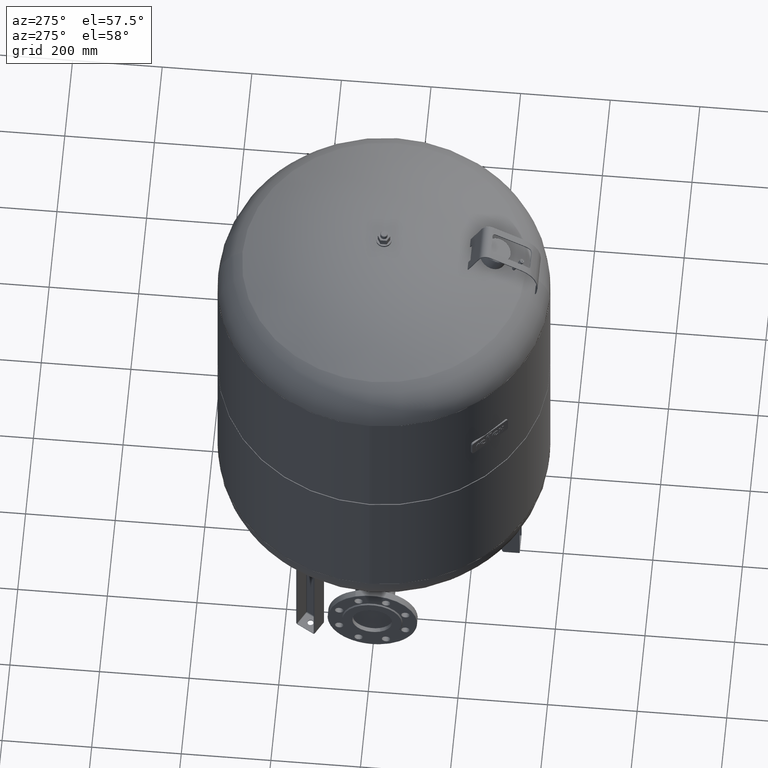
[diagram: clean part render]
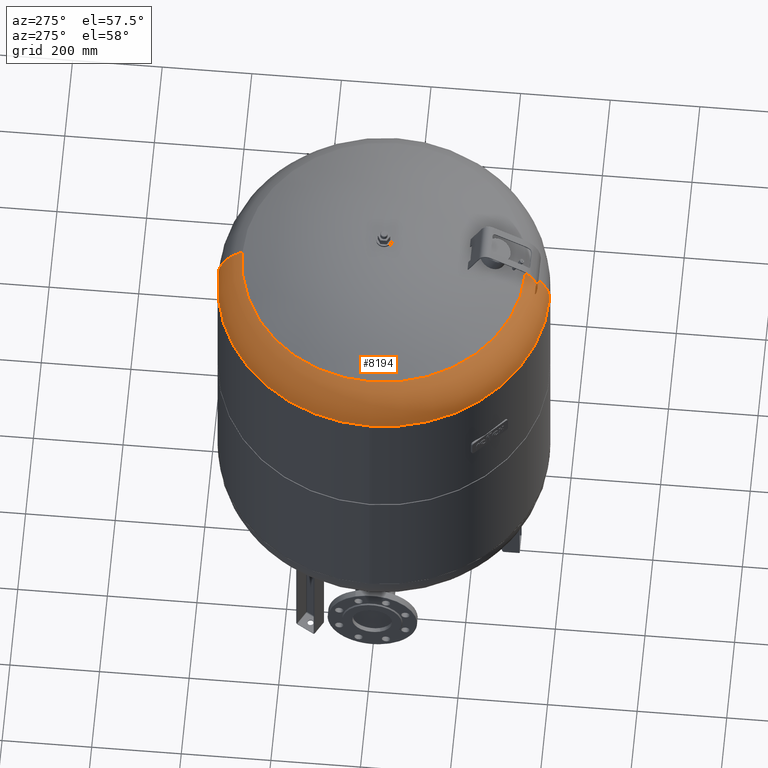
[diagram: same view with one face highlighted and labeled with its STEP entity id]
A machine part, auxiliary view. The second image highlights one B-rep face of the part: STEP entity #8194.
In plain terms, the highlighted toroidal blend (fillet) surface has major radius 254.5 mm and minor (blend) radius 115.5 mm.
Its self-contained STEP definition (entity closure, byte-faithful):
#8080=CARTESIAN_POINT('',(-370.0,1.062956E-014,1027.206120388130600));
#8081=VERTEX_POINT('',#8080);
#8088=CARTESIAN_POINT('',(2.218985E-014,369.999999999999940,1027.206120388130300));
#8089=VERTEX_POINT('',#8088);
#8090=CARTESIAN_POINT('',(-2.312058E-014,-3.468087E-014,1027.206120388130600));
#8091=DIRECTION('',(0.0,0.0,-1.0));
#8092=DIRECTION('',(1.0,0.0,0.0));
#8093=AXIS2_PLACEMENT_3D('',#8090,#8091,#8092);
#8094=CIRCLE('',#8093,370.0);
#8095=EDGE_CURVE('',#8081,#8089,#8094,.T.);
#8112=CARTESIAN_POINT('',(-2.312058E-014,-370.000000000000060,1027.206120388130600));
#8113=VERTEX_POINT('',#8112);
#8114=CARTESIAN_POINT('',(-1.114251E-014,-315.931034482758610,1125.014494274920500));
#8115=VERTEX_POINT('',#8114);
#8116=CARTESIAN_POINT('',(-2.312058E-014,-254.500000000000060,1027.206120388130300));
#8117=DIRECTION('',(-1.0,0.0,0.0));
#8118=DIRECTION('',(0.0,-1.0,0.0));
#8119=AXIS2_PLACEMENT_3D('',#8116,#8117,#8118);
#8120=CIRCLE('',#8119,115.500000000000000);
#8121=EDGE_CURVE('',#8113,#8115,#8120,.T.);
#8131=CARTESIAN_POINT('',(2.754660E-014,315.931034482758610,1125.014494274920300));
#8132=VERTEX_POINT('',#8131);
#8133=CARTESIAN_POINT('',(8.045650E-015,254.500000000000000,1027.206120388130300));
#8134=DIRECTION('',(1.0,0.0,0.0));
#8135=DIRECTION('',(0.0,1.0,0.0));
#8136=AXIS2_PLACEMENT_3D('',#8133,#8134,#8135);
#8137=CIRCLE('',#8136,115.500000000000000);
#8138=EDGE_CURVE('',#8089,#8132,#8137,.T.);
#8166=CARTESIAN_POINT('',(-1.114251E-014,-1.671377E-014,1125.014494274920500));
#8167=DIRECTION('',(0.0,0.0,-1.0));
#8168=DIRECTION('',(1.0,0.0,0.0));
#8169=AXIS2_PLACEMENT_3D('',#8166,#8167,#8168);
#8170=CIRCLE('',#8169,315.931034482758610);
#8171=EDGE_CURVE('',#8115,#8132,#8170,.T.);
#8176=CARTESIAN_POINT('',(-2.312058E-014,-3.468087E-014,1027.206120388130300));
#8177=DIRECTION('',(-1.224647E-016,-1.836970E-016,-1.0));
#8178=DIRECTION('',(0.0,-1.0,0.0));
#8179=AXIS2_PLACEMENT_3D('',#8176,#8177,#8178);
#8180=TOROIDAL_SURFACE('',#8179,254.500000000000030,115.500000000000000);
#8181=ORIENTED_EDGE('',*,*,#8121,.T.);
#8182=ORIENTED_EDGE('',*,*,#8171,.T.);
#8183=ORIENTED_EDGE('',*,*,#8138,.F.);
#8184=ORIENTED_EDGE('',*,*,#8095,.F.);
#8185=CARTESIAN_POINT('',(-2.312058E-014,-3.468087E-014,1027.206120388130600));
#8186=DIRECTION('',(0.0,0.0,-1.0));
#8187=DIRECTION('',(1.0,0.0,0.0));
#8188=AXIS2_PLACEMENT_3D('',#8185,#8186,#8187);
#8189=CIRCLE('',#8188,370.0);
#8190=EDGE_CURVE('',#8113,#8081,#8189,.T.);
#8191=ORIENTED_EDGE('',*,*,#8190,.F.);
#8192=EDGE_LOOP('',(#8181,#8182,#8183,#8184,#8191));
#8193=FACE_OUTER_BOUND('',#8192,.T.);
#8194=ADVANCED_FACE('',(#8193),#8180,.T.);